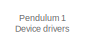
[diagram: root canvas - part 1/4, top center region]
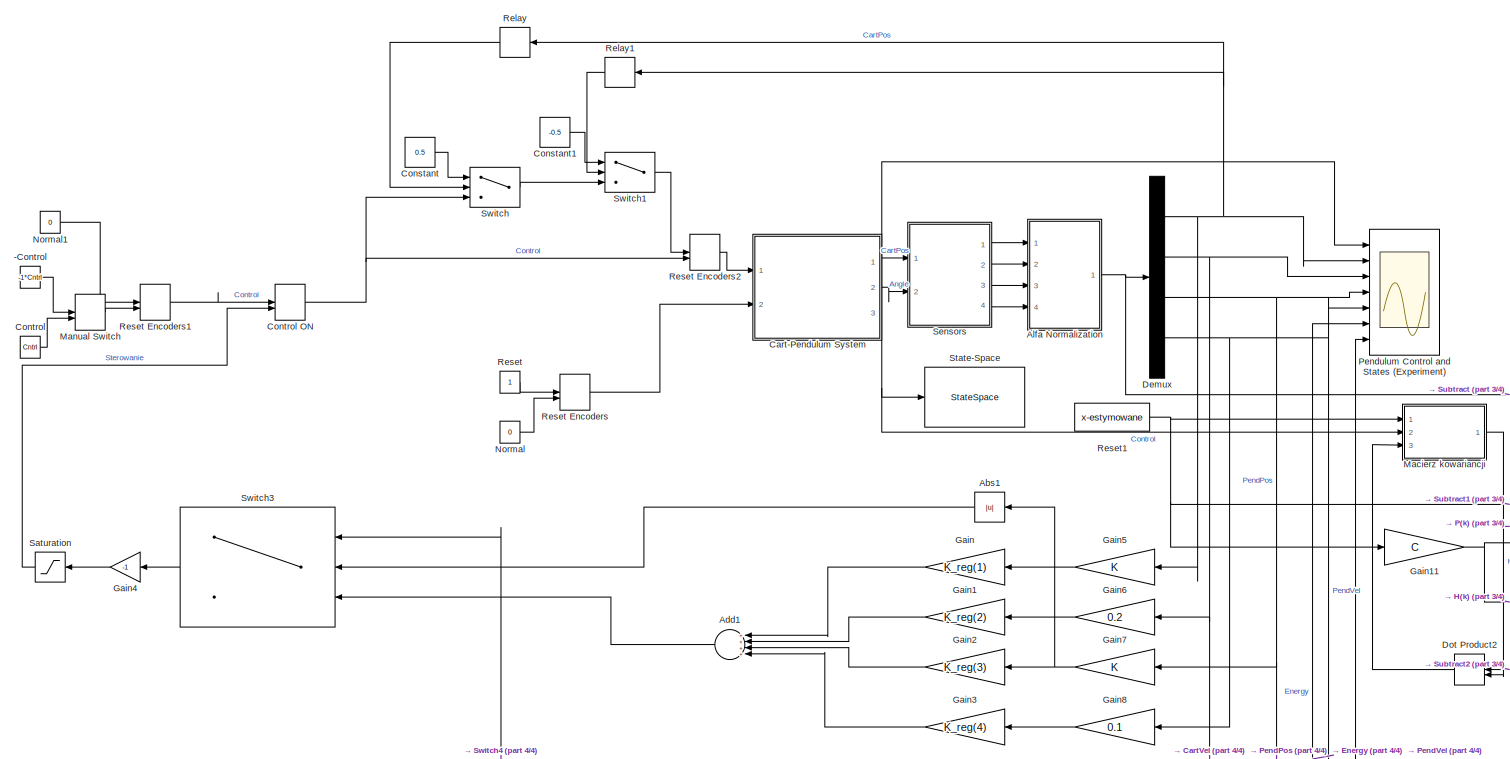
[diagram: root canvas - part 2/4, full width, middle band]
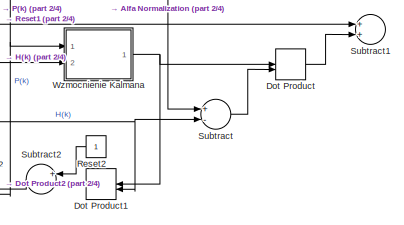
[diagram: root canvas - part 3/4, middle right region]
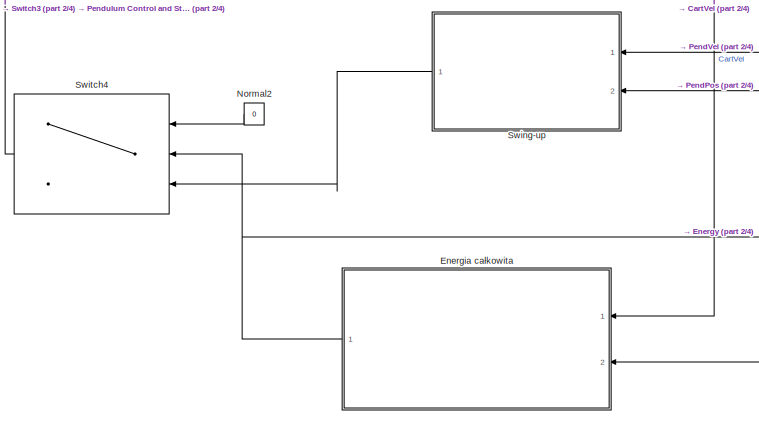
[diagram: root canvas - part 4/4, bottom center region]
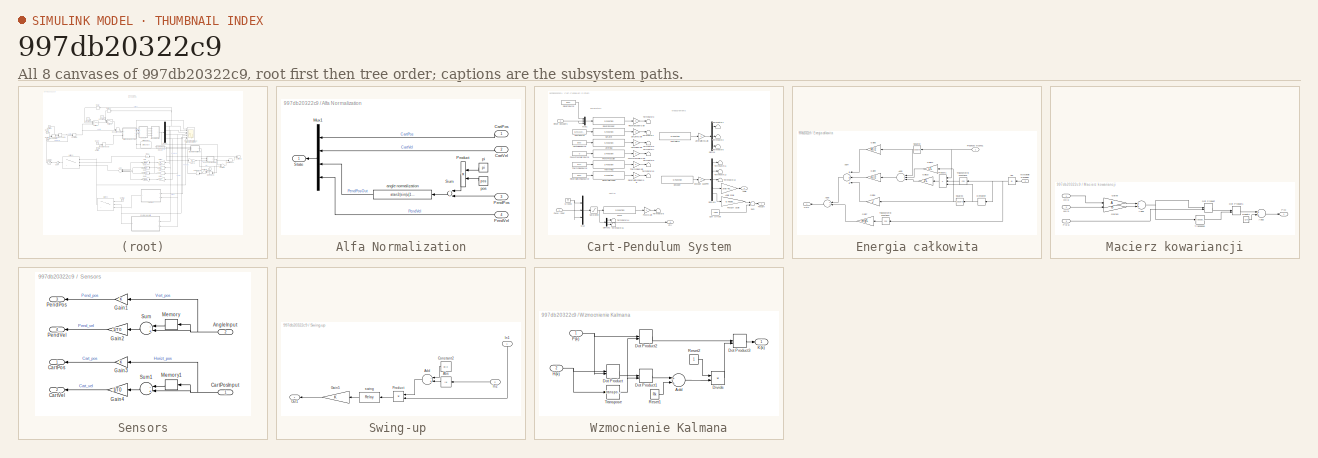
[diagram: thumbnail index - all 8 canvases of the model, root first then tree order]
MODEL slx_997db20322c9
KIND model
CONFIG AbsTol = 1e-6
CONFIG EnableMultiTasking = off
CONFIG FixedStep = 0.01
CONFIG MaxStep = auto
CONFIG MinStep = auto
CONFIG RelTol = 1e-3
CONFIG SampleTimeConstraint = Unconstrained
CONFIG Solver = ode5
CONFIG SolverName = ode5
CONFIG StartTime = 0.0
CONFIG StopTime = 999
BLOCK [Constant] -Control
  Value = -1*Cntrl
BLOCK [Abs] Abs1
  SaturateOnIntegerOverflow = off
BLOCK [Sum] Add1
  InputSameDT = off
  Inputs = ++++
  OutDataTypeStr = Inherit: Inherit via internal rule
  Ports = [4, 1]
  SaturateOnIntegerOverflow = off
BLOCK [SubSystem] Alfa Normalization
  Ports = [4, 1]
  RequestExecContextInheritance = off
BLOCK [Inport] Alfa Normalization/CartPos
  IconDisplay = Port number
BLOCK [Inport] Alfa Normalization/CartVel
  IconDisplay = Port number
  Port = 2
BLOCK [Mux] Alfa Normalization/Mux1
  Ports = [4, 1]
BLOCK [Inport] Alfa Normalization/PendPos
  IconDisplay = Port number
  Port = 3
BLOCK [Inport] Alfa Normalization/PendVel
  IconDisplay = Port number
  Port = 4
BLOCK [Product] Alfa Normalization/Product
  Ports = [2, 1]
  RndMeth = Floor
BLOCK [Outport] Alfa Normalization/State
  IconDisplay = Port number
  InitialOutput = 0
BLOCK [Sum] Alfa Normalization/Sum
  Ports = [2, 1]
BLOCK [Fcn] Alfa Normalization/angle normalization
  Expr = atan2(sin(u[1]),cos(u[1]))
BLOCK [Constant] Alfa Normalization/pi
  Value = pi
BLOCK [Constant] Alfa Normalization/pos
  Value = pos
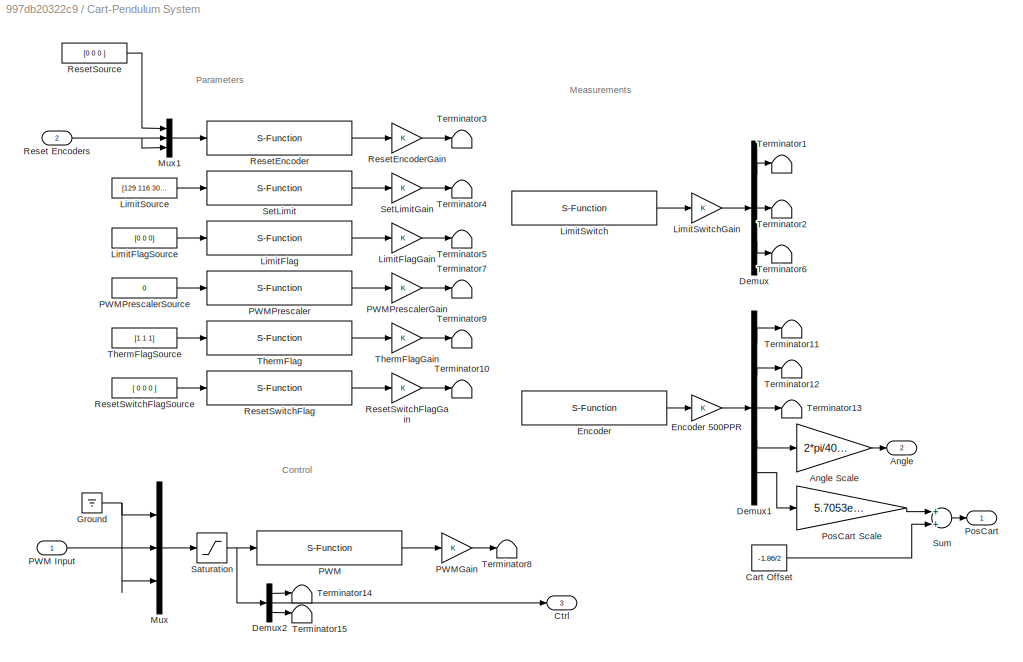
BLOCK [SubSystem] Cart-Pendulum System
  Ports = [2, 3]
  RequestExecContextInheritance = off
BLOCK [Outport] Cart-Pendulum System/Angle
  IconDisplay = Port number
  InitialOutput = 0
  Port = 2
BLOCK [Gain] Cart-Pendulum System/Angle Scale
  Gain = 2*pi/4096
  SaturateOnIntegerOverflow = off
BLOCK [Constant] Cart-Pendulum System/Cart Offset
  Value = -1.86/2
BLOCK [Outport] Cart-Pendulum System/Ctrl
  IconDisplay = Port number
  InitialOutput = 0
  Port = 3
BLOCK [Demux] Cart-Pendulum System/Demux
  Outputs = 3
  Ports = [1, 3]
BLOCK [Demux] Cart-Pendulum System/Demux1
  Outputs = 5
  Ports = [1, 5]
BLOCK [Demux] Cart-Pendulum System/Demux2
  DisplayOption = bar
  Outputs = 3
  Ports = [1, 3]
BLOCK [S-Function] Cart-Pendulum System/Encoder
  EnableBusSupport = off
  FunctionName = P1_Encoder
  Parameters = BaseAddress, T0
  Ports = [0, 1]
  SFcnIsStateOwnerBlock = off
  SFunctionDeploymentMode = off
BLOCK [Gain] Cart-Pendulum System/Encoder 500PPR
BLOCK [Ground] Cart-Pendulum System/Ground
BLOCK [S-Function] Cart-Pendulum System/LimitFlag
  EnableBusSupport = off
  FunctionName = P1_LimitFlag
  Parameters = BaseAddress, T0
  Ports = [1, 1]
  SFcnIsStateOwnerBlock = off
  SFunctionDeploymentMode = off
BLOCK [Gain] Cart-Pendulum System/LimitFlagGain
BLOCK [Constant] Cart-Pendulum System/LimitFlagSource
  Value = [0 0 0]
BLOCK [Constant] Cart-Pendulum System/LimitSource
  Value = [129 116 300]
BLOCK [S-Function] Cart-Pendulum System/LimitSwitch
  EnableBusSupport = off
  FunctionName = P1_Switch
  Parameters = BaseAddress, T0
  Ports = [0, 1]
  SFcnIsStateOwnerBlock = off
  SFunctionDeploymentMode = off
BLOCK [Gain] Cart-Pendulum System/LimitSwitchGain
BLOCK [Mux] Cart-Pendulum System/Mux
  Inputs = 3
  Ports = [3, 1]
BLOCK [Mux] Cart-Pendulum System/Mux1
  DisplayOption = bar
  Inputs = [3 1 1]
  Ports = [3, 1]
BLOCK [S-Function] Cart-Pendulum System/PWM
  EnableBusSupport = off
  FunctionName = P1_PWM
  Parameters = BaseAddress, T0
  Ports = [1, 1]
  SFcnIsStateOwnerBlock = off
  SFunctionDeploymentMode = off
BLOCK [Inport] Cart-Pendulum System/PWM Input
  IconDisplay = Port number
BLOCK [Gain] Cart-Pendulum System/PWMGain
BLOCK [S-Function] Cart-Pendulum System/PWMPrescaler
  EnableBusSupport = off
  FunctionName = P1_PWMPrescaler
  Parameters = BaseAddress, T0
  Ports = [1, 1]
  SFcnIsStateOwnerBlock = off
  SFunctionDeploymentMode = off
BLOCK [Gain] Cart-Pendulum System/PWMPrescalerGain
BLOCK [Constant] Cart-Pendulum System/PWMPrescalerSource
  Value = 0
BLOCK [Outport] Cart-Pendulum System/PosCart
  IconDisplay = Port number
  InitialOutput = 0
BLOCK [Gain] Cart-Pendulum System/PosCart Scale
  Gain = 5.7053e-005
  SaturateOnIntegerOverflow = off
BLOCK [Inport] Cart-Pendulum System/Reset Encoders
  IconDisplay = Port number
  Port = 2
BLOCK [S-Function] Cart-Pendulum System/ResetEncoder
  EnableBusSupport = off
  FunctionName = P1_ResetEncoder
  Parameters = BaseAddress, T0
  Ports = [1, 1]
  SFcnIsStateOwnerBlock = off
  SFunctionDeploymentMode = off
BLOCK [Gain] Cart-Pendulum System/ResetEncoderGain
BLOCK [Constant] Cart-Pendulum System/ResetSource
  Value = [0 0 0 ]
BLOCK [S-Function] Cart-Pendulum System/ResetSwitchFlag 
  EnableBusSupport = off
  FunctionName = P1_ResetSwitchFlag
  Parameters = BaseAddress, T0
  Ports = [1, 1]
  SFcnIsStateOwnerBlock = off
  SFunctionDeploymentMode = off
BLOCK [Gain] Cart-Pendulum System/ResetSwitchFlagGain
BLOCK [Constant] Cart-Pendulum System/ResetSwitchFlagSource
  Value = [ 0 0 0 ]
BLOCK [Saturate] Cart-Pendulum System/Saturation
  InputPortMap = u0
  Ports = [1, 1]
BLOCK [S-Function] Cart-Pendulum System/SetLimit
  EnableBusSupport = off
  FunctionName = P1_SetLimit
  Parameters = BaseAddress, T0
  Ports = [1, 1]
  SFcnIsStateOwnerBlock = off
  SFunctionDeploymentMode = off
BLOCK [Gain] Cart-Pendulum System/SetLimitGain
BLOCK [Sum] Cart-Pendulum System/Sum
  Ports = [2, 1]
BLOCK [Terminator] Cart-Pendulum System/Terminator1
BLOCK [Terminator] Cart-Pendulum System/Terminator10
BLOCK [Terminator] Cart-Pendulum System/Terminator11
BLOCK [Terminator] Cart-Pendulum System/Terminator12
BLOCK [Terminator] Cart-Pendulum System/Terminator13
BLOCK [Terminator] Cart-Pendulum System/Terminator14
BLOCK [Terminator] Cart-Pendulum System/Terminator15
BLOCK [Terminator] Cart-Pendulum System/Terminator2
BLOCK [Terminator] Cart-Pendulum System/Terminator3
BLOCK [Terminator] Cart-Pendulum System/Terminator4
BLOCK [Terminator] Cart-Pendulum System/Terminator5
BLOCK [Terminator] Cart-Pendulum System/Terminator6
BLOCK [Terminator] Cart-Pendulum System/Terminator7
BLOCK [Terminator] Cart-Pendulum System/Terminator8
BLOCK [Terminator] Cart-Pendulum System/Terminator9
BLOCK [S-Function] Cart-Pendulum System/ThermFlag 
  EnableBusSupport = off
  FunctionName = P1_ThermFlag
  Parameters = BaseAddress, T0
  Ports = [1, 1]
  SFcnIsStateOwnerBlock = off
  SFunctionDeploymentMode = off
BLOCK [Gain] Cart-Pendulum System/ThermFlagGain
BLOCK [Constant] Cart-Pendulum System/ThermFlagSource
  Value = [1 1 1]
BLOCK [Constant] Constant
  Value = 0.5
BLOCK [Constant] Constant1
  Value = -0.5
BLOCK [Constant] Control
  Value = Cntrl
BLOCK [ManualSwitch] Control ON
  CurrentSetting = 0
BLOCK [Demux] Demux
  Ports = [1, 4]
BLOCK [DotProduct] Dot Product
  OutDataTypeStr = Inherit: Inherit via internal rule
BLOCK [DotProduct] Dot Product1
  OutDataTypeStr = Inherit: Inherit via internal rule
BLOCK [DotProduct] Dot Product2
  OutDataTypeStr = Inherit: Inherit via internal rule
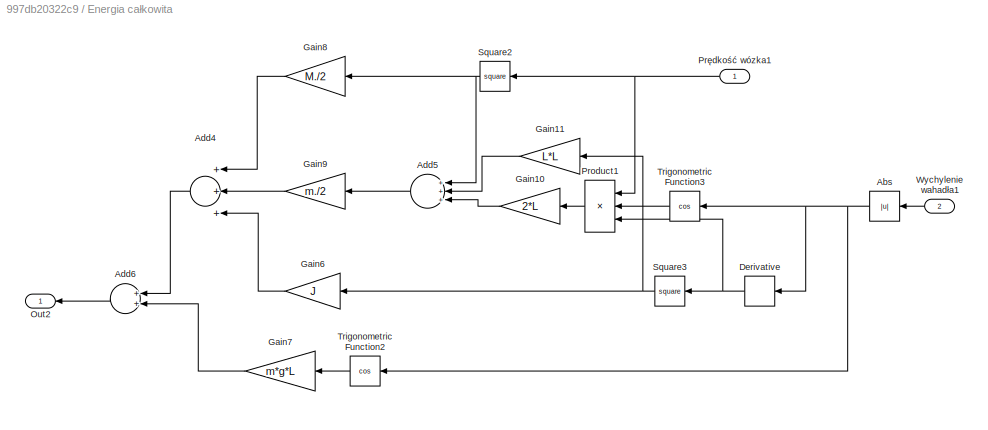
BLOCK [SubSystem] Energia całkowita
  Ports = [2, 1]
  RequestExecContextInheritance = off
BLOCK [Abs] Energia całkowita/Abs
  SaturateOnIntegerOverflow = off
BLOCK [Sum] Energia całkowita/Add4
  InputSameDT = off
  Inputs = +++
  OutDataTypeStr = Inherit: Inherit via internal rule
  Ports = [3, 1]
  SaturateOnIntegerOverflow = off
BLOCK [Sum] Energia całkowita/Add5
  InputSameDT = off
  Inputs = +++
  OutDataTypeStr = Inherit: Inherit via internal rule
  Ports = [3, 1]
  SaturateOnIntegerOverflow = off
BLOCK [Sum] Energia całkowita/Add6
  InputSameDT = off
  OutDataTypeStr = Inherit: Inherit via internal rule
  Ports = [2, 1]
  SaturateOnIntegerOverflow = off
BLOCK [Derivative] Energia całkowita/Derivative
BLOCK [Gain] Energia całkowita/Gain10
  Gain = 2*L
  OutDataTypeStr = Inherit: Inherit via internal rule
  ParamDataTypeStr = Inherit: Inherit via internal rule
  SaturateOnIntegerOverflow = off
BLOCK [Gain] Energia całkowita/Gain11
  Gain = L*L
  OutDataTypeStr = Inherit: Inherit via internal rule
  ParamDataTypeStr = Inherit: Inherit via internal rule
  SaturateOnIntegerOverflow = off
BLOCK [Gain] Energia całkowita/Gain6
  Gain = J
  OutDataTypeStr = Inherit: Inherit via internal rule
  ParamDataTypeStr = Inherit: Inherit via internal rule
  SaturateOnIntegerOverflow = off
BLOCK [Gain] Energia całkowita/Gain7
  Gain = m*g*L
  OutDataTypeStr = Inherit: Inherit via internal rule
  ParamDataTypeStr = Inherit: Inherit via internal rule
  SaturateOnIntegerOverflow = off
BLOCK [Gain] Energia całkowita/Gain8
  Gain = M./2
  OutDataTypeStr = Inherit: Inherit via internal rule
  ParamDataTypeStr = Inherit: Inherit via internal rule
  SaturateOnIntegerOverflow = off
BLOCK [Gain] Energia całkowita/Gain9
  Gain = m./2
  OutDataTypeStr = Inherit: Inherit via internal rule
  ParamDataTypeStr = Inherit: Inherit via internal rule
  SaturateOnIntegerOverflow = off
BLOCK [Outport] Energia całkowita/Out2
  IconDisplay = Port number
BLOCK [Product] Energia całkowita/Product1
  InputSameDT = off
  Inputs = 3
  OutDataTypeStr = Inherit: Inherit via internal rule
  Ports = [3, 1]
  RndMeth = Floor
  SaturateOnIntegerOverflow = off
BLOCK [Inport] Energia całkowita/Prędkość wózka1
  IconDisplay = Port number
BLOCK [Math] Energia całkowita/Square2
  Operator = square
  Ports = [1, 1]
BLOCK [Math] Energia całkowita/Square3
  Operator = square
  Ports = [1, 1]
BLOCK [Trigonometry] Energia całkowita/Trigonometric Function2
  Operator = cos
  Ports = [1, 1]
BLOCK [Trigonometry] Energia całkowita/Trigonometric Function3
  Operator = cos
  Ports = [1, 1]
BLOCK [Inport] Energia całkowita/Wychylenie wahadła1
  IconDisplay = Port number
  Port = 2
BLOCK [Gain] Gain
  Gain = K_reg(1)
  OutDataTypeStr = Inherit: Inherit via internal rule
  ParamDataTypeStr = Inherit: Inherit via internal rule
  SaturateOnIntegerOverflow = off
BLOCK [Gain] Gain1
  Gain = K_reg(2)
  OutDataTypeStr = Inherit: Inherit via internal rule
  ParamDataTypeStr = Inherit: Inherit via internal rule
  SaturateOnIntegerOverflow = off
BLOCK [Gain] Gain11
  Gain = C
  OutDataTypeStr = Inherit: Inherit via internal rule
  ParamDataTypeStr = Inherit: Inherit via internal rule
  SaturateOnIntegerOverflow = off
BLOCK [Gain] Gain2
  Gain = K_reg(3)
  OutDataTypeStr = Inherit: Inherit via internal rule
  ParamDataTypeStr = Inherit: Inherit via internal rule
  SaturateOnIntegerOverflow = off
BLOCK [Gain] Gain3
  Gain = K_reg(4)
  OutDataTypeStr = Inherit: Inherit via internal rule
  ParamDataTypeStr = Inherit: Inherit via internal rule
  SaturateOnIntegerOverflow = off
BLOCK [Gain] Gain4
  Gain = -1
  OutDataTypeStr = Inherit: Inherit via internal rule
  ParamDataTypeStr = Inherit: Inherit via internal rule
  SaturateOnIntegerOverflow = off
BLOCK [Gain] Gain5
  OutDataTypeStr = Inherit: Inherit via internal rule
  ParamDataTypeStr = Inherit: Inherit via internal rule
  SaturateOnIntegerOverflow = off
BLOCK [Gain] Gain6
  Gain = 0.2
  OutDataTypeStr = Inherit: Inherit via internal rule
  ParamDataTypeStr = Inherit: Inherit via internal rule
  SaturateOnIntegerOverflow = off
BLOCK [Gain] Gain7
  OutDataTypeStr = Inherit: Inherit via internal rule
  ParamDataTypeStr = Inherit: Inherit via internal rule
  SaturateOnIntegerOverflow = off
BLOCK [Gain] Gain8
  Gain = 0.1
  OutDataTypeStr = Inherit: Inherit via internal rule
  ParamDataTypeStr = Inherit: Inherit via internal rule
  SaturateOnIntegerOverflow = off
BLOCK [SubSystem] Macierz kowariancji
  Ports = [3, 1]
  RequestExecContextInheritance = off
BLOCK [Sum] Macierz kowariancji/Add2
  InputSameDT = off
  OutDataTypeStr = Inherit: Inherit via internal rule
  Ports = [2, 1]
  SaturateOnIntegerOverflow = off
BLOCK [Sum] Macierz kowariancji/Add3
  InputSameDT = off
  OutDataTypeStr = Inherit: Inherit via internal rule
  Ports = [2, 1]
  SaturateOnIntegerOverflow = off
BLOCK [DotProduct] Macierz kowariancji/Dot Product
  OutDataTypeStr = Inherit: Inherit via internal rule
BLOCK [DotProduct] Macierz kowariancji/Dot Product1
  OutDataTypeStr = Inherit: Inherit via internal rule
BLOCK [Gain] Macierz kowariancji/Gain10
  Gain = B
  OutDataTypeStr = Inherit: Inherit via internal rule
  ParamDataTypeStr = Inherit: Inherit via internal rule
  SaturateOnIntegerOverflow = off
BLOCK [Gain] Macierz kowariancji/Gain9
  Gain = A
  OutDataTypeStr = Inherit: Inherit via internal rule
  ParamDataTypeStr = Inherit: Inherit via internal rule
  SaturateOnIntegerOverflow = off
BLOCK [Outport] Macierz kowariancji/P(k)
  IconDisplay = Port number
BLOCK [Inport] Macierz kowariancji/P(k-1)
  IconDisplay = Port number
  Port = 3
BLOCK [Constant] Macierz kowariancji/Reset2
  Value = Qk
BLOCK [Math] Macierz kowariancji/Transpose
  Operator = transpose
  Ports = [1, 1]
  SignedPower = off
BLOCK [Inport] Macierz kowariancji/u(k-1)
  IconDisplay = Port number
  Port = 2
BLOCK [Inport] Macierz kowariancji/x(k-1)
  IconDisplay = Port number
BLOCK [ManualSwitch] Manual Switch
  CurrentSetting = 0
BLOCK [Constant] Normal
  Value = 0
BLOCK [Constant] Normal1
  Value = 0
BLOCK [Constant] Normal2
  Value = 0
BLOCK [Scope] Pendulum Control and States (Experiment)
  ExtModeLoggingTrig = on
  ExtModeUploadOption = log
  Floating = off
  NumInputPorts = 7
  Ports = [7]
  ScopeSpecificationString = C++SS(StrPVP('Location','[967, 60, 1911, 1155]'),StrPVP('Open','off'),StrPVP('ZoomMode','yonly'),MxPVP('AxesTitles',54,'struct(''axes1'',''%<SignalLabel>'',''axes2'',''%<SignalLabel>'',''axes3'',''%<SignalLabel>'',''axes4'',''%<SignalLabel>'',''axes5'',''%<SignalLabel>'',''axes6'',''%<SignalLabel>'',''axes7'',''%<SignalLabel>'')'),MxPVP('ScopeGraphics',57,'struct(''FigureColor'',''[0.1568627450980...<+679ch>
BLOCK [Relay] Relay
  OffSwitchValue = 0.6
  OnSwitchValue = 0.7
BLOCK [Relay] Relay1
  OffOutputValue = 1
  OffSwitchValue = -0.7
  OnOutputValue = 0
  OnSwitchValue = -0.6
BLOCK [Constant] Reset
BLOCK [ManualSwitch] Reset Encoders
  CurrentSetting = 0
BLOCK [ManualSwitch] Reset Encoders1
BLOCK [ManualSwitch] Reset Encoders2
BLOCK [Constant] Reset1
  Value = x-estymowane
BLOCK [Constant] Reset2
BLOCK [Saturate] Saturation
  InputPortMap = u0
  LowerLimit = -1
  Ports = [1, 1]
  UpperLimit = 1
BLOCK [SubSystem] Sensors
  Ports = [2, 4]
  RequestExecContextInheritance = off
BLOCK [Inport] Sensors/AngleInput
  IconDisplay = Port number
  Port = 2
BLOCK [Outport] Sensors/CartPos
  IconDisplay = Port number
  InitialOutput = 0
BLOCK [Inport] Sensors/CartPosInput
  IconDisplay = Port number
BLOCK [Outport] Sensors/CartVel
  IconDisplay = Port number
  InitialOutput = 0
  Port = 2
BLOCK [Gain] Sensors/Gain1
BLOCK [Gain] Sensors/Gain2
  Gain = 1/T0
BLOCK [Gain] Sensors/Gain3
BLOCK [Gain] Sensors/Gain4
  Gain = 1/T0
BLOCK [Memory] Sensors/Memory
BLOCK [Memory] Sensors/Memory1
BLOCK [Outport] Sensors/PendPos
  IconDisplay = Port number
  InitialOutput = 0
  Port = 3
BLOCK [Outport] Sensors/PendVel
  IconDisplay = Port number
  InitialOutput = 0
  Port = 4
BLOCK [Sum] Sensors/Sum
  Inputs = -+
  Ports = [2, 1]
BLOCK [Sum] Sensors/Sum1
  Inputs = -+
  Ports = [2, 1]
BLOCK [StateSpace] State-Space
  A = A
  B = B
  C = C
  D = D
  InitialCondition = 0
  Ports = [1, 1]
BLOCK [Sum] Subtract
  InputSameDT = off
  Inputs = +-
  OutDataTypeStr = Inherit: Inherit via internal rule
  Ports = [2, 1]
  SaturateOnIntegerOverflow = off
BLOCK [Sum] Subtract1
  InputSameDT = off
  OutDataTypeStr = Inherit: Inherit via internal rule
  Ports = [2, 1]
  SaturateOnIntegerOverflow = off
BLOCK [Sum] Subtract2
  InputSameDT = off
  Inputs = +-
  OutDataTypeStr = Inherit: Inherit via internal rule
  Ports = [2, 1]
  SaturateOnIntegerOverflow = off
BLOCK [SubSystem] Swing-up 
  Ports = [2, 1]
  RequestExecContextInheritance = off
BLOCK [Abs] Swing-up /Abs
  SaturateOnIntegerOverflow = off
BLOCK [Sum] Swing-up /Add
  InputSameDT = off
  Inputs = -+
  OutDataTypeStr = Inherit: Inherit via internal rule
  Ports = [2, 1]
  SaturateOnIntegerOverflow = off
BLOCK [Constant] Swing-up /Constant2
  Value = pi/2
BLOCK [Gain] Swing-up /Gain5
  OutDataTypeStr = Inherit: Inherit via internal rule
  ParamDataTypeStr = Inherit: Inherit via internal rule
  SaturateOnIntegerOverflow = off
BLOCK [Inport] Swing-up /In1
  IconDisplay = Port number
BLOCK [Inport] Swing-up /In2
  IconDisplay = Port number
  Port = 2
BLOCK [Outport] Swing-up /Out1
  IconDisplay = Port number
BLOCK [Product] Swing-up /Product
  InputSameDT = off
  OutDataTypeStr = Inherit: Inherit via internal rule
  Ports = [2, 1]
  RndMeth = Floor
  SaturateOnIntegerOverflow = off
BLOCK [Relay] Swing-up /swing
  OffOutputValue = -1
BLOCK [Switch] Switch
  InputSameDT = off
  SaturateOnIntegerOverflow = off
  Threshold = 1
BLOCK [Switch] Switch1
  InputSameDT = off
  SaturateOnIntegerOverflow = off
  Threshold = 1
BLOCK [Switch] Switch3
  InputSameDT = off
  SaturateOnIntegerOverflow = off
  Threshold = 0.2
BLOCK [Switch] Switch4
  InputSameDT = off
  SaturateOnIntegerOverflow = off
  Threshold = 0.43
BLOCK [SubSystem] Wzmocnienie Kalmana
  Ports = [2, 1]
  RequestExecContextInheritance = off
BLOCK [Sum] Wzmocnienie Kalmana/Add
  InputSameDT = off
  OutDataTypeStr = Inherit: Inherit via internal rule
  Ports = [2, 1]
  SaturateOnIntegerOverflow = off
BLOCK [Product] Wzmocnienie Kalmana/Divide
  InputSameDT = off
  Inputs = */
  Multiplication = Matrix(*)
  OutDataTypeStr = Inherit: Inherit via internal rule
  Ports = [2, 1]
  RndMeth = Floor
  SaturateOnIntegerOverflow = off
BLOCK [DotProduct] Wzmocnienie Kalmana/Dot Product
  OutDataTypeStr = Inherit: Inherit via internal rule
BLOCK [DotProduct] Wzmocnienie Kalmana/Dot Product1
  OutDataTypeStr = Inherit: Inherit via internal rule
BLOCK [DotProduct] Wzmocnienie Kalmana/Dot Product2
  OutDataTypeStr = Inherit: Inherit via internal rule
BLOCK [DotProduct] Wzmocnienie Kalmana/Dot Product3
  OutDataTypeStr = Inherit: Inherit via internal rule
BLOCK [Inport] Wzmocnienie Kalmana/H(k)
  IconDisplay = Port number
  Port = 2
BLOCK [Outport] Wzmocnienie Kalmana/K(k)
  IconDisplay = Port number
BLOCK [Inport] Wzmocnienie Kalmana/P(k)
  IconDisplay = Port number
BLOCK [Constant] Wzmocnienie Kalmana/Reset1
  Value = Rk
BLOCK [Constant] Wzmocnienie Kalmana/Reset2
BLOCK [Math] Wzmocnienie Kalmana/Transpose
  Operator = transpose
  Ports = [1, 1]
  SignedPower = off
ANNOTATION (root): Pendulum 1 Device drivers
ANNOTATION Cart-Pendulum System: Control
ANNOTATION Cart-Pendulum System: Measurements
ANNOTATION Cart-Pendulum System: Parameters
LINE -Control:1 -> Manual Switch:1
LINE Abs1:1 -> Switch3:2
LINE Add1:1 -> Switch3:3
LINE Alfa Normalization/CartPos:1 -> Alfa Normalization/Mux1:1
LINE Alfa Normalization/CartVel:1 -> Alfa Normalization/Mux1:2
LINE Alfa Normalization/Mux1:1 -> Alfa Normalization/State:1
LINE Alfa Normalization/PendPos:1 -> Alfa Normalization/Sum:2
LINE Alfa Normalization/PendVel:1 -> Alfa Normalization/Mux1:4
LINE Alfa Normalization/Product:1 -> Alfa Normalization/Sum:1
LINE Alfa Normalization/Sum:1 -> Alfa Normalization/angle normalization:1
LINE Alfa Normalization/angle normalization:1 -> Alfa Normalization/Mux1:3
LINE Alfa Normalization/pi:1 -> Alfa Normalization/Product:1
LINE Alfa Normalization/pos:1 -> Alfa Normalization/Product:2
NET Alfa Normalization:1 -> Demux:1, Subtract:1
LINE Cart-Pendulum System/Angle Scale:1 -> Cart-Pendulum System/Angle:1
LINE Cart-Pendulum System/Cart Offset:1 -> Cart-Pendulum System/Sum:2
LINE Cart-Pendulum System/Demux1:1 -> Cart-Pendulum System/Terminator11:1
LINE Cart-Pendulum System/Demux1:2 -> Cart-Pendulum System/Terminator12:1
LINE Cart-Pendulum System/Demux1:3 -> Cart-Pendulum System/Terminator13:1
LINE Cart-Pendulum System/Demux1:4 -> Cart-Pendulum System/Angle Scale:1
LINE Cart-Pendulum System/Demux1:5 -> Cart-Pendulum System/PosCart Scale:1
LINE Cart-Pendulum System/Demux2:1 -> Cart-Pendulum System/Terminator14:1
LINE Cart-Pendulum System/Demux2:2 -> Cart-Pendulum System/Ctrl:1
LINE Cart-Pendulum System/Demux2:3 -> Cart-Pendulum System/Terminator15:1
LINE Cart-Pendulum System/Demux:1 -> Cart-Pendulum System/Terminator1:1
LINE Cart-Pendulum System/Demux:2 -> Cart-Pendulum System/Terminator2:1
LINE Cart-Pendulum System/Demux:3 -> Cart-Pendulum System/Terminator6:1
LINE Cart-Pendulum System/Encoder 500PPR:1 -> Cart-Pendulum System/Demux1:1
LINE Cart-Pendulum System/Encoder:1 -> Cart-Pendulum System/Encoder 500PPR:1
NET Cart-Pendulum System/Ground:1 -> Cart-Pendulum System/Mux:1, Cart-Pendulum System/Mux:3
LINE Cart-Pendulum System/LimitFlag:1 -> Cart-Pendulum System/LimitFlagGain:1
LINE Cart-Pendulum System/LimitFlagGain:1 -> Cart-Pendulum System/Terminator5:1
LINE Cart-Pendulum System/LimitFlagSource:1 -> Cart-Pendulum System/LimitFlag:1
LINE Cart-Pendulum System/LimitSource:1 -> Cart-Pendulum System/SetLimit:1
LINE Cart-Pendulum System/LimitSwitch:1 -> Cart-Pendulum System/LimitSwitchGain:1
LINE Cart-Pendulum System/LimitSwitchGain:1 -> Cart-Pendulum System/Demux:1
LINE Cart-Pendulum System/Mux1:1 -> Cart-Pendulum System/ResetEncoder:1
LINE Cart-Pendulum System/Mux:1 -> Cart-Pendulum System/Saturation:1
LINE Cart-Pendulum System/PWM Input:1 -> Cart-Pendulum System/Mux:2
LINE Cart-Pendulum System/PWM:1 -> Cart-Pendulum System/PWMGain:1
LINE Cart-Pendulum System/PWMGain:1 -> Cart-Pendulum System/Terminator8:1
LINE Cart-Pendulum System/PWMPrescaler:1 -> Cart-Pendulum System/PWMPrescalerGain:1
LINE Cart-Pendulum System/PWMPrescalerGain:1 -> Cart-Pendulum System/Terminator7:1
LINE Cart-Pendulum System/PWMPrescalerSource:1 -> Cart-Pendulum System/PWMPrescaler:1
LINE Cart-Pendulum System/PosCart Scale:1 -> Cart-Pendulum System/Sum:1
NET Cart-Pendulum System/Reset Encoders:1 -> Cart-Pendulum System/Mux1:2, Cart-Pendulum System/Mux1:3
LINE Cart-Pendulum System/ResetEncoder:1 -> Cart-Pendulum System/ResetEncoderGain:1
LINE Cart-Pendulum System/ResetEncoderGain:1 -> Cart-Pendulum System/Terminator3:1
LINE Cart-Pendulum System/ResetSource:1 -> Cart-Pendulum System/Mux1:1
LINE Cart-Pendulum System/ResetSwitchFlag :1 -> Cart-Pendulum System/ResetSwitchFlagGain:1
LINE Cart-Pendulum System/ResetSwitchFlagGain:1 -> Cart-Pendulum System/Terminator10:1
LINE Cart-Pendulum System/ResetSwitchFlagSource:1 -> Cart-Pendulum System/ResetSwitchFlag :1
NET Cart-Pendulum System/Saturation:1 -> Cart-Pendulum System/Demux2:1, Cart-Pendulum System/PWM:1
LINE Cart-Pendulum System/SetLimit:1 -> Cart-Pendulum System/SetLimitGain:1
LINE Cart-Pendulum System/SetLimitGain:1 -> Cart-Pendulum System/Terminator4:1
LINE Cart-Pendulum System/Sum:1 -> Cart-Pendulum System/PosCart:1
LINE Cart-Pendulum System/ThermFlag :1 -> Cart-Pendulum System/ThermFlagGain:1
LINE Cart-Pendulum System/ThermFlagGain:1 -> Cart-Pendulum System/Terminator9:1
LINE Cart-Pendulum System/ThermFlagSource:1 -> Cart-Pendulum System/ThermFlag :1
LINE Cart-Pendulum System:1 -> Sensors:1
LINE Cart-Pendulum System:2 -> Sensors:2
NET Cart-Pendulum System:3 -> Macierz kowariancji:2, Pendulum Control and States (Experiment):1, State-Space:1
LINE Constant1:1 -> Switch1:1
LINE Constant:1 -> Switch:1
NET Control ON:1 -> Reset Encoders2:2, Switch:3
LINE Control:1 -> Manual Switch:2
NET Demux:1 -> Gain5:1, Pendulum Control and States (Experiment):2, Relay1:1, Relay:1
NET Demux:2 -> Energia całkowita:1, Gain6:1, Pendulum Control and States (Experiment):3
NET Demux:3 -> Energia całkowita:2, Gain7:1, Pendulum Control and States (Experiment):4, Swing-up :2
NET Demux:4 -> Gain8:1, Pendulum Control and States (Experiment):5, Swing-up :1
LINE Dot Product1:1 -> Subtract2:2
LINE Dot Product2:1 -> Macierz kowariancji:3
LINE Dot Product:1 -> Subtract1:2
NET Energia całkowita/Abs:1 -> Energia całkowita/Derivative:1, Energia całkowita/Trigonometric Function2:1, Energia całkowita/Trigonometric Function3:1
LINE Energia całkowita/Add4:1 -> Energia całkowita/Add6:1
LINE Energia całkowita/Add5:1 -> Energia całkowita/Gain9:1
LINE Energia całkowita/Add6:1 -> Energia całkowita/Out2:1
NET Energia całkowita/Derivative:1 -> Energia całkowita/Product1:3, Energia całkowita/Square3:1
LINE Energia całkowita/Gain10:1 -> Energia całkowita/Add5:3
LINE Energia całkowita/Gain11:1 -> Energia całkowita/Add5:2
LINE Energia całkowita/Gain6:1 -> Energia całkowita/Add4:3
LINE Energia całkowita/Gain7:1 -> Energia całkowita/Add6:2
LINE Energia całkowita/Gain8:1 -> Energia całkowita/Add4:1
LINE Energia całkowita/Gain9:1 -> Energia całkowita/Add4:2
LINE Energia całkowita/Product1:1 -> Energia całkowita/Gain10:1
NET Energia całkowita/Prędkość wózka1:1 -> Energia całkowita/Product1:1, Energia całkowita/Square2:1
NET Energia całkowita/Square2:1 -> Energia całkowita/Add5:1, Energia całkowita/Gain8:1
NET Energia całkowita/Square3:1 -> Energia całkowita/Gain11:1, Energia całkowita/Gain6:1
LINE Energia całkowita/Trigonometric Function2:1 -> Energia całkowita/Gain7:1
LINE Energia całkowita/Trigonometric Function3:1 -> Energia całkowita/Product1:2
LINE Energia całkowita/Wychylenie wahadła1:1 -> Energia całkowita/Abs:1
NET Energia całkowita:1 -> Pendulum Control and States (Experiment):6, Switch4:2
NET Gain11:1 -> Dot Product1:2, Subtract:2, Wzmocnienie Kalmana:2
LINE Gain1:1 -> Add1:2
LINE Gain2:1 -> Add1:3
LINE Gain3:1 -> Add1:4
LINE Gain4:1 -> Saturation:1
LINE Gain5:1 -> Gain:1
LINE Gain6:1 -> Gain1:1
NET Gain7:1 -> Abs1:1, Gain2:1
LINE Gain8:1 -> Gain3:1
LINE Gain:1 -> Add1:1
LINE Macierz kowariancji/Add2:1 -> Macierz kowariancji/P(k):1
NET Macierz kowariancji/Add3:1 -> Macierz kowariancji/Dot Product:1, Macierz kowariancji/Transpose:1
LINE Macierz kowariancji/Dot Product1:1 -> Macierz kowariancji/Add2:1
LINE Macierz kowariancji/Dot Product:1 -> Macierz kowariancji/Dot Product1:1
LINE Macierz kowariancji/Gain10:1 -> Macierz kowariancji/Add3:2
LINE Macierz kowariancji/Gain9:1 -> Macierz kowariancji/Add3:1
LINE Macierz kowariancji/P(k-1):1 -> Macierz kowariancji/Dot Product:2
LINE Macierz kowariancji/Reset2:1 -> Macierz kowariancji/Add2:2
LINE Macierz kowariancji/Transpose:1 -> Macierz kowariancji/Dot Product1:2
LINE Macierz kowariancji/u(k-1):1 -> Macierz kowariancji/Gain10:1
LINE Macierz kowariancji/x(k-1):1 -> Macierz kowariancji/Gain9:1
NET Macierz kowariancji:1 -> Dot Product2:2, Wzmocnienie Kalmana:1
LINE Manual Switch:1 -> Reset Encoders1:2
LINE Normal1:1 -> Reset Encoders1:1
LINE Normal2:1 -> Switch4:1
LINE Normal:1 -> Reset Encoders:2
LINE Relay1:1 -> Switch1:2
LINE Relay:1 -> Switch:2
LINE Reset Encoders1:1 -> Control ON:1
LINE Reset Encoders2:1 -> Cart-Pendulum System:1
LINE Reset Encoders:1 -> Cart-Pendulum System:2
NET Reset1:1 -> Gain11:1, Macierz kowariancji:1, Subtract1:1
LINE Reset2:1 -> Subtract2:1
LINE Reset:1 -> Reset Encoders:1
LINE Saturation:1 -> Control ON:2
NET Sensors/AngleInput:1 -> Sensors/Gain1:1, Sensors/Memory:1, Sensors/Sum:2
NET Sensors/CartPosInput:1 -> Sensors/Gain3:1, Sensors/Memory1:1, Sensors/Sum1:2
LINE Sensors/Gain1:1 -> Sensors/PendPos:1
LINE Sensors/Gain2:1 -> Sensors/PendVel:1
LINE Sensors/Gain3:1 -> Sensors/CartPos:1
LINE Sensors/Gain4:1 -> Sensors/CartVel:1
LINE Sensors/Memory1:1 -> Sensors/Sum1:1
LINE Sensors/Memory:1 -> Sensors/Sum:1
LINE Sensors/Sum1:1 -> Sensors/Gain4:1
LINE Sensors/Sum:1 -> Sensors/Gain2:1
LINE Sensors:1 -> Alfa Normalization:1
LINE Sensors:2 -> Alfa Normalization:2
LINE Sensors:3 -> Alfa Normalization:3
LINE Sensors:4 -> Alfa Normalization:4
LINE Subtract2:1 -> Dot Product2:1
LINE Subtract:1 -> Dot Product:2
LINE Swing-up /Abs:1 -> Swing-up /Add:2
LINE Swing-up /Add:1 -> Swing-up /Product:1
LINE Swing-up /Constant2:1 -> Swing-up /Add:1
LINE Swing-up /Gain5:1 -> Swing-up /Out1:1
LINE Swing-up /In1:1 -> Swing-up /Product:2
LINE Swing-up /In2:1 -> Swing-up /Abs:1
LINE Swing-up /Product:1 -> Swing-up /swing:1
LINE Swing-up /swing:1 -> Swing-up /Gain5:1
LINE Swing-up :1 -> Switch4:3
LINE Switch1:1 -> Reset Encoders2:1
LINE Switch3:1 -> Gain4:1
NET Switch4:1 -> Pendulum Control and States (Experiment):7, Switch3:1
LINE Switch:1 -> Switch1:3
LINE Wzmocnienie Kalmana/Add:1 -> Wzmocnienie Kalmana/Divide:2
LINE Wzmocnienie Kalmana/Divide:1 -> Wzmocnienie Kalmana/Dot Product3:2
LINE Wzmocnienie Kalmana/Dot Product1:1 -> Wzmocnienie Kalmana/Add:1
LINE Wzmocnienie Kalmana/Dot Product2:1 -> Wzmocnienie Kalmana/Dot Product3:1
LINE Wzmocnienie Kalmana/Dot Product3:1 -> Wzmocnienie Kalmana/K(k):1
LINE Wzmocnienie Kalmana/Dot Product:1 -> Wzmocnienie Kalmana/Dot Product1:1
NET Wzmocnienie Kalmana/H(k):1 -> Wzmocnienie Kalmana/Dot Product:1, Wzmocnienie Kalmana/Transpose:1
NET Wzmocnienie Kalmana/P(k):1 -> Wzmocnienie Kalmana/Dot Product2:1, Wzmocnienie Kalmana/Dot Product:2
LINE Wzmocnienie Kalmana/Reset1:1 -> Wzmocnienie Kalmana/Add:2
LINE Wzmocnienie Kalmana/Reset2:1 -> Wzmocnienie Kalmana/Divide:1
NET Wzmocnienie Kalmana/Transpose:1 -> Wzmocnienie Kalmana/Dot Product1:2, Wzmocnienie Kalmana/Dot Product2:2
NET Wzmocnienie Kalmana:1 -> Dot Product1:1, Dot Product:1
note: NET lines group one-source signal fan-out (src -> all destinations, sorted); 1:1 wires keep LINE
